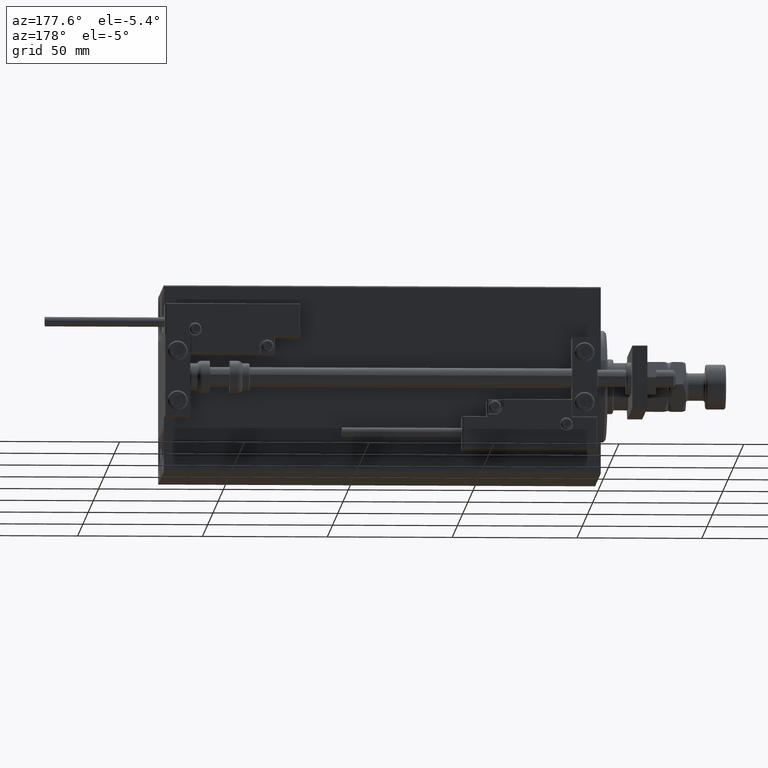
[diagram: clean part render]
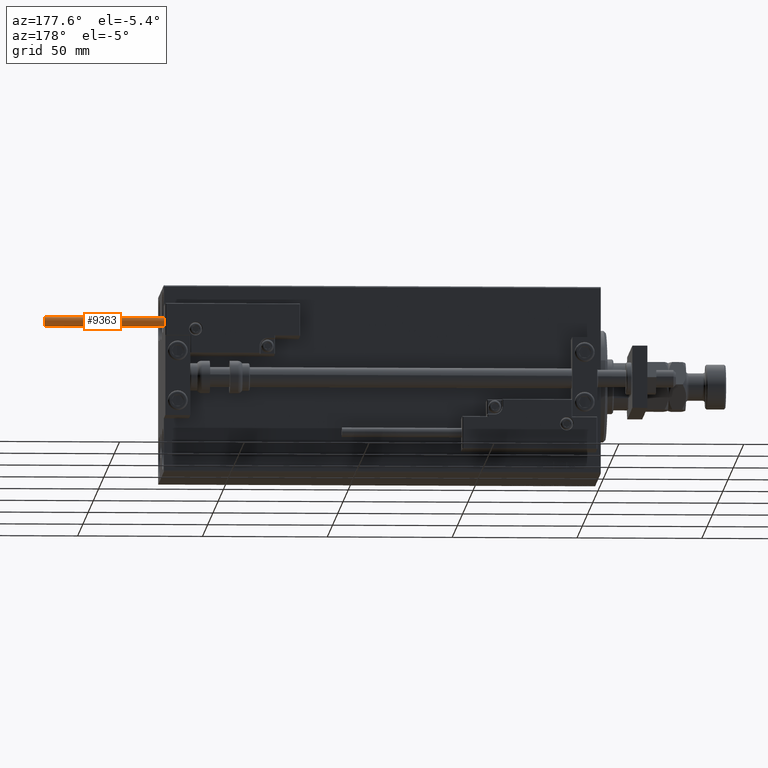
[diagram: same view with one face highlighted and labeled with its STEP entity id]
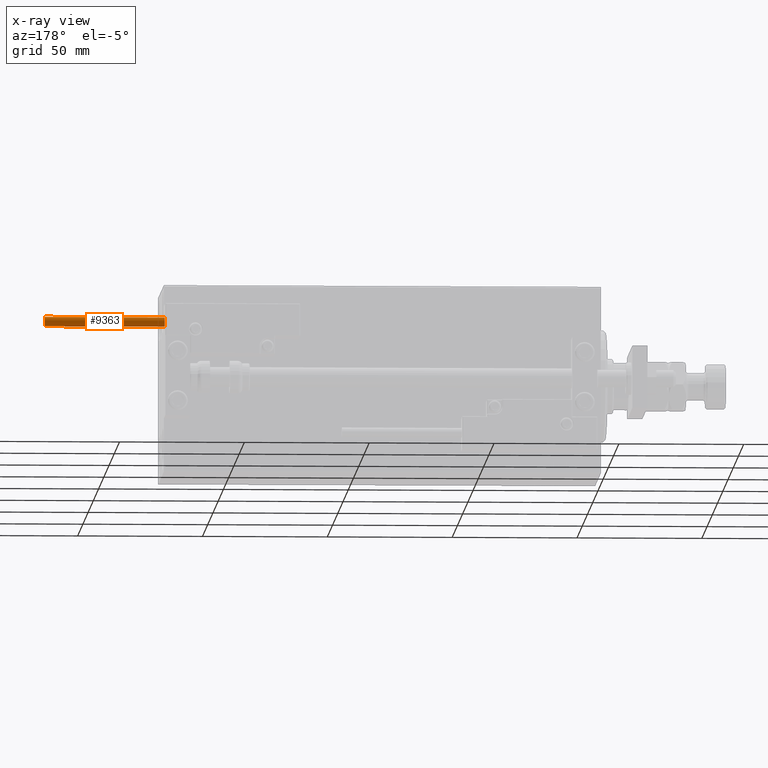
[diagram: x-ray of the same camera — body ghosted, the highlighted face saturated]
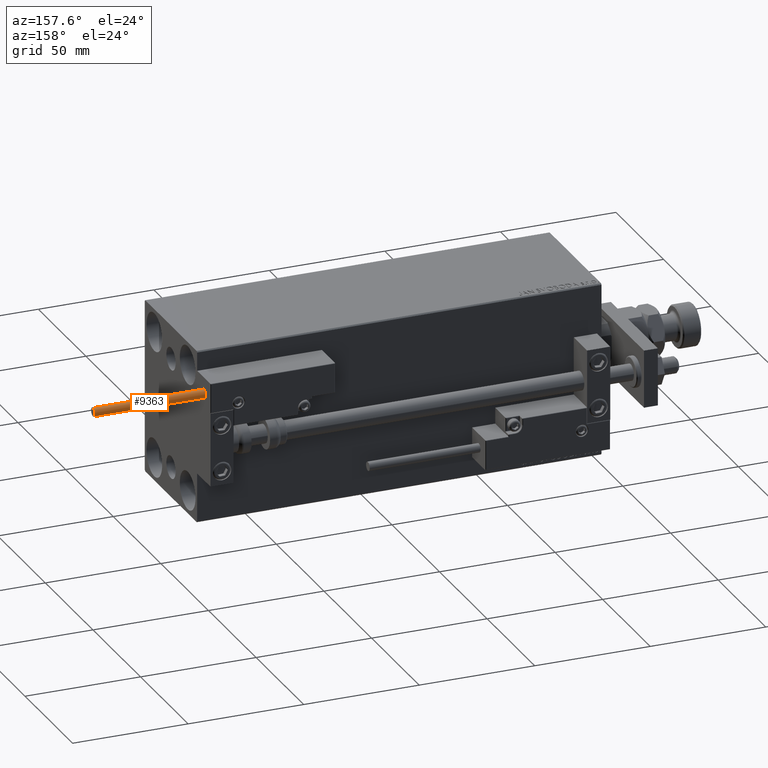
[diagram: same view with one face highlighted and labeled with its STEP entity id]
A machine part, auxiliary view. The second image highlights one B-rep face of the part: STEP entity #9363.
The next image is the same camera in x-ray: the body ghosted, the highlighted face saturated — about 0% of this face is hidden behind the body in this view.
A second angle (auxiliary view) of the same face is appended — the face is thin or edge-on in the first view.
In plain terms, the highlighted cylindrical surface (edge-blend (fillet) strip) has radius 1.9 mm, axis along (-1, -0, 0).
Its self-contained STEP definition (entity closure, byte-faithful):
#1082 = CARTESIAN_POINT ( 'NONE',  ( 0.000000000000000000, 0.000000000000000000, 0.000000000000000000 ) ) ;
#2266 = DIRECTION ( 'NONE',  ( -1.000000000000000000, 0.000000000000000000, 0.000000000000000000 ) ) ;
#2345 = CIRCLE ( 'NONE', #32294, 1.899999999999999467 ) ;
#3393 = VECTOR ( 'NONE', #38229, 1000.000000000000000 ) ;
#6421 = DIRECTION ( 'NONE',  ( -0.000000000000000000, -0.000000000000000000, -1.000000000000000000 ) ) ;
#9363 = ADVANCED_FACE ( 'NONE', ( #33826 ), #49985, .T. ) ;
#10457 = ORIENTED_EDGE ( 'NONE', *, *, #13997, .F. ) ;
#10516 = VERTEX_POINT ( 'NONE', #16005 ) ;
#12565 = DIRECTION ( 'NONE',  ( 0.000000000000000000, 0.000000000000000000, 1.000000000000000000 ) ) ;
#13997 = EDGE_CURVE ( 'NONE', #10516, #23239, #2345, .T. ) ;
#14481 = CARTESIAN_POINT ( 'NONE',  ( -1.899999999999999467, 0.000000000000000000, 48.00000000000000000 ) ) ;
#14830 = ORIENTED_EDGE ( 'NONE', *, *, #23236, .T. ) ;
#15953 = VERTEX_POINT ( 'NONE', #47756 ) ;
#16005 = CARTESIAN_POINT ( 'NONE',  ( 1.899999999999999467, 2.326828918379970872E-16, 48.00000000000000000 ) ) ;
#16091 = ORIENTED_EDGE ( 'NONE', *, *, #20343, .F. ) ;
#18005 = CARTESIAN_POINT ( 'NONE',  ( 0.000000000000000000, 0.000000000000000000, 48.00000000000000000 ) ) ;
#19552 = EDGE_CURVE ( 'NONE', #15953, #28358, #51566, .T. ) ;
#20343 = EDGE_CURVE ( 'NONE', #23239, #28358, #41664, .T. ) ;
#22304 = LINE ( 'NONE', #34311, #3393 ) ;
#23236 = EDGE_CURVE ( 'NONE', #10516, #15953, #22304, .T. ) ;
#23239 = VERTEX_POINT ( 'NONE', #14481 ) ;
#25566 = DIRECTION ( 'NONE',  ( 1.000000000000000000, 0.000000000000000000, 0.000000000000000000 ) ) ;
#26207 = AXIS2_PLACEMENT_3D ( 'NONE', #45817, #41913, #2266 ) ;
#27312 = EDGE_LOOP ( 'NONE', ( #10457, #14830, #41124, #16091 ) ) ;
#28358 = VERTEX_POINT ( 'NONE', #28891 ) ;
#28891 = CARTESIAN_POINT ( 'NONE',  ( -1.899999999999999467, 0.000000000000000000, 0.000000000000000000 ) ) ;
#31573 = AXIS2_PLACEMENT_3D ( 'NONE', #1082, #12565, #44912 ) ;
#32294 = AXIS2_PLACEMENT_3D ( 'NONE', #18005, #50083, #25566 ) ;
#33826 = FACE_OUTER_BOUND ( 'NONE', #27312, .T. ) ;
#34311 = CARTESIAN_POINT ( 'NONE',  ( 1.899999999999999467, 2.326828918379970872E-16, 48.00000000000000000 ) ) ;
#38229 = DIRECTION ( 'NONE',  ( -0.000000000000000000, -0.000000000000000000, -1.000000000000000000 ) ) ;
#41124 = ORIENTED_EDGE ( 'NONE', *, *, #19552, .T. ) ;
#41664 = LINE ( 'NONE', #45581, #45776 ) ;
#41913 = DIRECTION ( 'NONE',  ( -0.000000000000000000, -0.000000000000000000, -1.000000000000000000 ) ) ;
#44912 = DIRECTION ( 'NONE',  ( 1.000000000000000000, 0.000000000000000000, 0.000000000000000000 ) ) ;
#45581 = CARTESIAN_POINT ( 'NONE',  ( -1.899999999999999467, 0.000000000000000000, 48.00000000000000000 ) ) ;
#45776 = VECTOR ( 'NONE', #6421, 1000.000000000000000 ) ;
#45817 = CARTESIAN_POINT ( 'NONE',  ( 0.000000000000000000, 0.000000000000000000, 48.00000000000000000 ) ) ;
#47756 = CARTESIAN_POINT ( 'NONE',  ( 1.899999999999999467, 2.326828918379970872E-16, 0.000000000000000000 ) ) ;
#49985 = CYLINDRICAL_SURFACE ( 'NONE', #26207, 1.899999999999999467 ) ;
#50083 = DIRECTION ( 'NONE',  ( 0.000000000000000000, 0.000000000000000000, 1.000000000000000000 ) ) ;
#51566 = CIRCLE ( 'NONE', #31573, 1.899999999999999467 ) ;